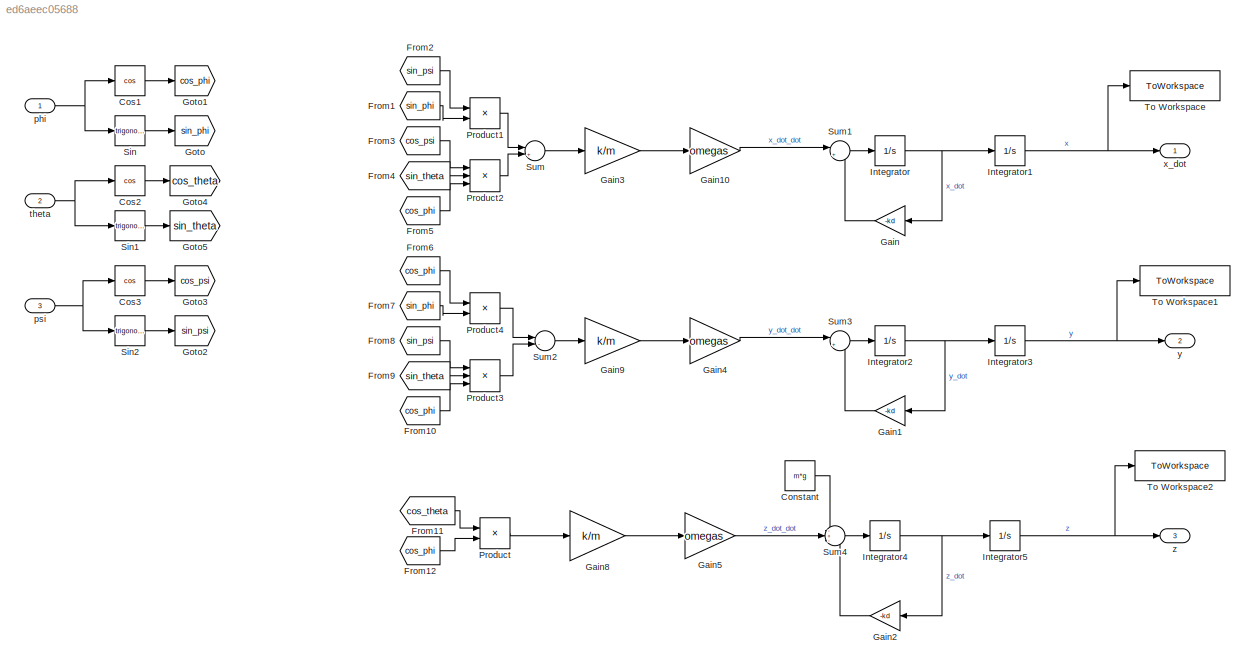
MODEL slx_ed6aeec05688
KIND model
CONFIG AbsTol = auto
CONFIG EnableMultiTasking = off
CONFIG FixedStep = auto
CONFIG MaxStep = auto
CONFIG MinStep = auto
CONFIG RelTol = 1e-3
CONFIG SampleTimeConstraint = Unconstrained
CONFIG SolverName = VariableStepAuto
CONFIG StartTime = 0.0
CONFIG StopTime = 10.0
BLOCK [Constant] Constant
  Value = m*g
BLOCK [Trigonometry] Cos1
  NameLocation = top
  Operator = cos
  Ports = [1, 1]
BLOCK [Trigonometry] Cos2
  Operator = cos
  Ports = [1, 1]
BLOCK [Trigonometry] Cos3
  Operator = cos
  Ports = [1, 1]
BLOCK [From] From1
  GotoTag = sin_phi
BLOCK [From] From10
  GotoTag = cos_phi
BLOCK [From] From11
  GotoTag = cos_theta
BLOCK [From] From12
  GotoTag = cos_phi
BLOCK [From] From2
  GotoTag = sin_psi
BLOCK [From] From3
  GotoTag = cos_psi
BLOCK [From] From4
  GotoTag = sin_theta
BLOCK [From] From5
  GotoTag = cos_phi
BLOCK [From] From6
  GotoTag = cos_phi
BLOCK [From] From7
  GotoTag = sin_phi
BLOCK [From] From8
  GotoTag = sin_psi
BLOCK [From] From9
  GotoTag = sin_theta
BLOCK [Gain] Gain
  Gain = -kd
  NameLocation = top
BLOCK [Gain] Gain1
  Gain = -kd
  NameLocation = top
BLOCK [Gain] Gain10
  Gain = omegas
BLOCK [Gain] Gain2
  Gain = -kd
  NameLocation = top
BLOCK [Gain] Gain3
  Gain = k/m
BLOCK [Gain] Gain4
  Gain = omegas
BLOCK [Gain] Gain5
  Gain = omegas
BLOCK [Gain] Gain8
  Gain = k/m
BLOCK [Gain] Gain9
  Gain = k/m
BLOCK [Goto] Goto
  GotoTag = sin_phi
BLOCK [Goto] Goto1
  GotoTag = cos_phi
BLOCK [Goto] Goto2
  GotoTag = sin_psi
BLOCK [Goto] Goto3
  GotoTag = cos_psi
BLOCK [Goto] Goto4
  GotoTag = cos_theta
BLOCK [Goto] Goto5
  GotoTag = sin_theta
BLOCK [Integrator] Integrator
  Ports = [1, 1]
BLOCK [Integrator] Integrator1
  Ports = [1, 1]
BLOCK [Integrator] Integrator2
  Ports = [1, 1]
BLOCK [Integrator] Integrator3
  Ports = [1, 1]
BLOCK [Integrator] Integrator4
  Ports = [1, 1]
BLOCK [Integrator] Integrator5
  Ports = [1, 1]
BLOCK [Product] Product
  Ports = [2, 1]
BLOCK [Product] Product1
  Ports = [2, 1]
BLOCK [Product] Product2
  Inputs = 3
  Ports = [3, 1]
BLOCK [Product] Product3
  Inputs = 3
  Ports = [3, 1]
BLOCK [Product] Product4
  Ports = [2, 1]
BLOCK [Trigonometry] Sin
  Ports = [1, 1]
BLOCK [Trigonometry] Sin1
  Ports = [1, 1]
BLOCK [Trigonometry] Sin2
  Ports = [1, 1]
BLOCK [Sum] Sum
  Inputs = |++|
  Ports = [2, 1]
BLOCK [Sum] Sum1
  Inputs = |++
  Ports = [2, 1]
BLOCK [Sum] Sum2
  Inputs = |-+|
  Ports = [2, 1]
BLOCK [Sum] Sum3
  Inputs = |++
  Ports = [2, 1]
BLOCK [Sum] Sum4
  Inputs = -+-
  Ports = [3, 1]
BLOCK [ToWorkspace] To Workspace
  FixptAsFi = on
  MaxDataPoints = inf
  Ports = [1]
  SampleTime = -1
  SaveFormat = Timeseries
  VariableName = x
BLOCK [ToWorkspace] To Workspace1
  FixptAsFi = on
  MaxDataPoints = inf
  Ports = [1]
  SampleTime = -1
  SaveFormat = Timeseries
  VariableName = y
BLOCK [ToWorkspace] To Workspace2
  FixptAsFi = on
  MaxDataPoints = inf
  Ports = [1]
  SampleTime = -1
  SaveFormat = Timeseries
  VariableName = simout
BLOCK [Inport] phi
BLOCK [Inport] psi
  Port = 3
BLOCK [Inport] theta
  Port = 2
BLOCK [Outport] x_dot
BLOCK [Outport] y
  Port = 2
BLOCK [Outport] z
  Port = 3
LINE Constant:1 -> Sum4:1
LINE Cos1:1 -> Goto1:1
LINE Cos2:1 -> Goto4:1
LINE Cos3:1 -> Goto3:1
LINE From10:1 -> Product3:3
LINE From11:1 -> Product:1
LINE From12:1 -> Product:2
LINE From1:1 -> Product1:2
LINE From2:1 -> Product1:1
LINE From3:1 -> Product2:1
LINE From4:1 -> Product2:2
LINE From5:1 -> Product2:3
LINE From6:1 -> Product4:1
LINE From7:1 -> Product4:2
LINE From8:1 -> Product3:1
LINE From9:1 -> Product3:2
LINE Gain10:1 -> Sum1:1
LINE Gain1:1 -> Sum3:2
LINE Gain2:1 -> Sum4:3
LINE Gain3:1 -> Gain10:1
LINE Gain4:1 -> Sum3:1
LINE Gain5:1 -> Sum4:2
LINE Gain8:1 -> Gain5:1
LINE Gain9:1 -> Gain4:1
LINE Gain:1 -> Sum1:2
NET Integrator1:1 -> To Workspace:1, x_dot:1
NET Integrator2:1 -> Gain1:1, Integrator3:1
NET Integrator3:1 -> To Workspace1:1, y:1
NET Integrator4:1 -> Gain2:1, Integrator5:1
NET Integrator5:1 -> To Workspace2:1, z:1
NET Integrator:1 -> Gain:1, Integrator1:1
LINE Product1:1 -> Sum:1
LINE Product2:1 -> Sum:2
LINE Product3:1 -> Sum2:2
LINE Product4:1 -> Sum2:1
LINE Product:1 -> Gain8:1
LINE Sin1:1 -> Goto5:1
LINE Sin2:1 -> Goto2:1
LINE Sin:1 -> Goto:1
LINE Sum1:1 -> Integrator:1
LINE Sum2:1 -> Gain9:1
LINE Sum3:1 -> Integrator2:1
LINE Sum4:1 -> Integrator4:1
LINE Sum:1 -> Gain3:1
NET phi:1 -> Cos1:1, Sin:1
NET psi:1 -> Cos3:1, Sin2:1
NET theta:1 -> Cos2:1, Sin1:1
note: NET lines group one-source signal fan-out (src -> all destinations, sorted); 1:1 wires keep LINE
